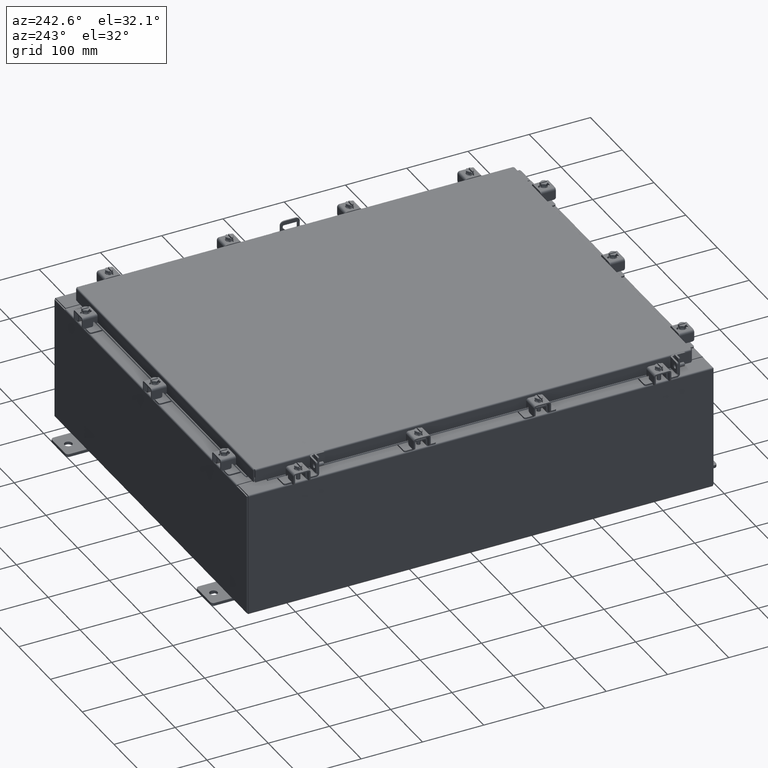
[diagram: clean part render]
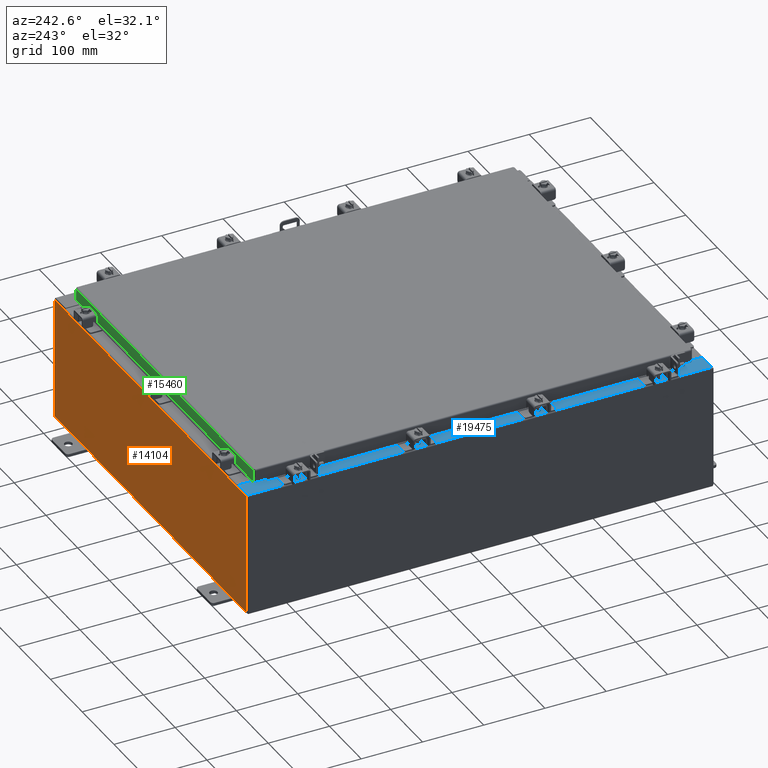
[diagram: same view with three faces highlighted in distinct colors, each labeled with its STEP entity id]
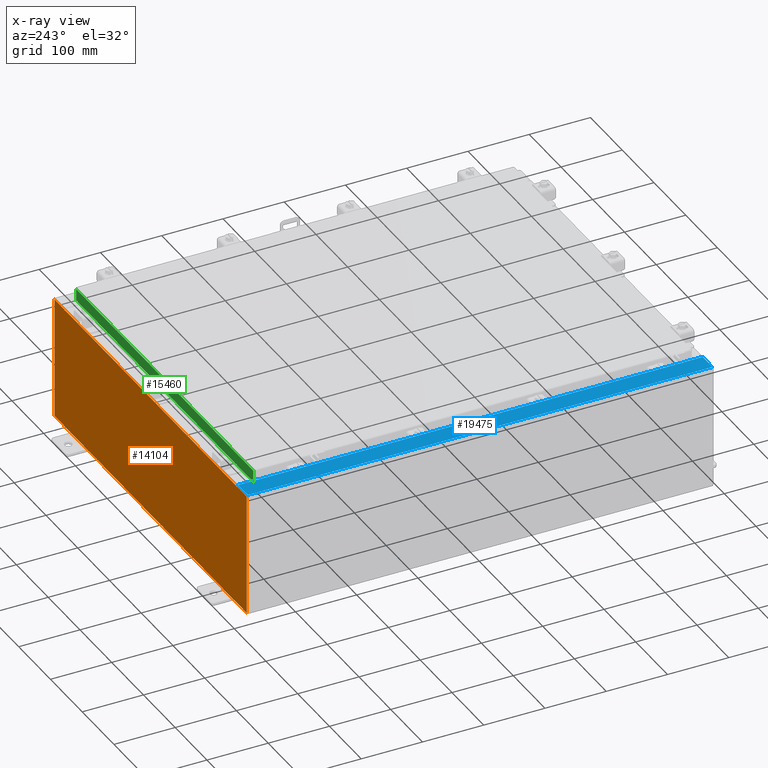
[diagram: x-ray of the same camera — body ghosted, the three highlighted faces saturated]
A machine part, auxiliary view with three faces highlighted in distinct colors.
The next image is the same camera in x-ray (body ghosted, the three faces saturated) — at least one of them is partly hidden behind the body in this view.
Their STEP definitions:

[orange] entity #14104 — the highlighted planar face has unit normal (0, -1, 0).
#158 = ORIENTED_EDGE ( 'NONE', *, *, #3708, .T. ) ;
#447 = CIRCLE ( 'NONE', #6986, 0.01867499999999949400 ) ;
#540 = VECTOR ( 'NONE', #19464, 39.37007874015748100 ) ;
#602 = CARTESIAN_POINT ( 'NONE',  ( 10.67454999999983300, -0.0000000000000000000, -4.633366117301815000E-013 ) ) ;
#752 = VECTOR ( 'NONE', #14850, 39.37007874015748100 ) ;
#1021 = LINE ( 'NONE', #602, #5194 ) ;
#1533 = LINE ( 'NONE', #5919, #5701 ) ;
#1565 = DIRECTION ( 'NONE',  ( 0.0000000000000000000, 0.0000000000000000000, -1.000000000000000000 ) ) ;
#1913 = DIRECTION ( 'NONE',  ( -0.0000000000000000000, 1.000000000000000000, -0.0000000000000000000 ) ) ;
#1983 = ORIENTED_EDGE ( 'NONE', *, *, #9355, .F. ) ;
#2015 = VERTEX_POINT ( 'NONE', #6578 ) ;
#2058 = CARTESIAN_POINT ( 'NONE',  ( 11.92530000000000000, 0.0000000000000000000, 3.925299999999999600 ) ) ;
#2156 = LINE ( 'NONE', #7537, #11028 ) ;
#2320 = ORIENTED_EDGE ( 'NONE', *, *, #19885, .F. ) ;
#2392 = CARTESIAN_POINT ( 'NONE',  ( -11.92530000000000000, 0.0000000000000000000, 3.925299999999999600 ) ) ;
#2454 = CARTESIAN_POINT ( 'NONE',  ( -11.92530000000000000, 0.0000000000000000000, -3.925299999999999600 ) ) ;
#2541 = ORIENTED_EDGE ( 'NONE', *, *, #5476, .F. ) ;
#2631 = CARTESIAN_POINT ( 'NONE',  ( 10.63720000000000400, 0.0000000000000000000, 3.874949999999999700 ) ) ;
#2865 = VECTOR ( 'NONE', #18726, 39.37007874015748100 ) ;
#3128 = CARTESIAN_POINT ( 'NONE',  ( -10.67455000000000200, 0.0000000000000000000, 3.925299999999999600 ) ) ;
#3237 = VERTEX_POINT ( 'NONE', #22089 ) ;
#3439 = ORIENTED_EDGE ( 'NONE', *, *, #21825, .F. ) ;
#3686 = EDGE_LOOP ( 'NONE', ( #15961, #1983, #3439, #158, #2320, #2541, #22035, #20472, #8961, #9691, #22755, #10307 ) ) ;
#3708 = EDGE_CURVE ( 'NONE', #21042, #3757, #21673, .T. ) ;
#3757 = VERTEX_POINT ( 'NONE', #12138 ) ;
#3929 = VERTEX_POINT ( 'NONE', #10959 ) ;
#4659 = VECTOR ( 'NONE', #8712, 39.37007874015748100 ) ;
#5194 = VECTOR ( 'NONE', #5980, 39.37007874015748100 ) ;
#5310 = DIRECTION ( 'NONE',  ( 0.0000000000000000000, -0.0000000000000000000, -1.000000000000000000 ) ) ;
#5476 = EDGE_CURVE ( 'NONE', #8221, #12244, #447, .T. ) ;
#5486 = LINE ( 'NONE', #2392, #752 ) ;
#5701 = VECTOR ( 'NONE', #20263, 39.37007874015748100 ) ;
#5723 = CARTESIAN_POINT ( 'NONE',  ( -10.65587500000000200, 0.0000000000000000000, 3.874949999999999700 ) ) ;
#5919 = CARTESIAN_POINT ( 'NONE',  ( -11.92530000000000000, 0.0000000000000000000, -3.925299999999999600 ) ) ;
#5980 = DIRECTION ( 'NONE',  ( -4.340572780400004900E-014, 0.0000000000000000000, -1.000000000000000000 ) ) ;
#6578 = CARTESIAN_POINT ( 'NONE',  ( 11.92530000000000000, 0.0000000000000000000, -3.925299999999999600 ) ) ;
#6986 = AXIS2_PLACEMENT_3D ( 'NONE', #12550, #1913, #14365 ) ;
#7530 = DIRECTION ( 'NONE',  ( 0.0000000000000000000, 0.0000000000000000000, -1.000000000000000000 ) ) ;
#7537 = CARTESIAN_POINT ( 'NONE',  ( -11.92530000000000000, 0.0000000000000000000, 3.925299999999999600 ) ) ;
#8015 = CARTESIAN_POINT ( 'NONE',  ( -10.67455000000000200, -0.0000000000000000000, 0.0000000000000000000 ) ) ;
#8221 = VERTEX_POINT ( 'NONE', #11346 ) ;
#8371 = VERTEX_POINT ( 'NONE', #3128 ) ;
#8712 = DIRECTION ( 'NONE',  ( -0.0000000000000000000, -0.0000000000000000000, 1.000000000000000000 ) ) ;
#8961 = ORIENTED_EDGE ( 'NONE', *, *, #20029, .T. ) ;
#9309 = DIRECTION ( 'NONE',  ( 1.000000000000000000, 0.0000000000000000000, 0.0000000000000000000 ) ) ;
#9355 = EDGE_CURVE ( 'NONE', #12139, #3237, #21292, .T. ) ;
#9691 = ORIENTED_EDGE ( 'NONE', *, *, #16687, .T. ) ;
#10084 = VERTEX_POINT ( 'NONE', #21834 ) ;
#10110 = DIRECTION ( 'NONE',  ( 0.0000000000000000000, 0.0000000000000000000, 1.000000000000000000 ) ) ;
#10307 = ORIENTED_EDGE ( 'NONE', *, *, #13594, .T. ) ;
#10429 = CARTESIAN_POINT ( 'NONE',  ( 11.92530000000000000, 0.0000000000000000000, 3.925299999999999600 ) ) ;
#10504 = CARTESIAN_POINT ( 'NONE',  ( -10.63720000000000400, -0.0000000000000000000, 0.0000000000000000000 ) ) ;
#10959 = CARTESIAN_POINT ( 'NONE',  ( 10.67455000000000200, 0.0000000000000000000, 3.925299999999999600 ) ) ;
#11028 = VECTOR ( 'NONE', #9309, 39.37007874015748100 ) ;
#11119 = EDGE_CURVE ( 'NONE', #15149, #10084, #19531, .T. ) ;
#11346 = CARTESIAN_POINT ( 'NONE',  ( 10.67455000000000200, 0.0000000000000000000, 3.874949999999999700 ) ) ;
#12058 = DIRECTION ( 'NONE',  ( 1.000000000000000000, 0.0000000000000000000, 0.0000000000000000000 ) ) ;
#12138 = CARTESIAN_POINT ( 'NONE',  ( 10.63720000000000400, 0.0000000000000000000, 3.912299999999999700 ) ) ;
#12139 = VERTEX_POINT ( 'NONE', #14793 ) ;
#12178 = EDGE_CURVE ( 'NONE', #3929, #8221, #1021, .T. ) ;
#12244 = VERTEX_POINT ( 'NONE', #2631 ) ;
#12550 = CARTESIAN_POINT ( 'NONE',  ( 10.65587500000000200, 0.0000000000000000000, 3.874949999999999700 ) ) ;
#12819 = EDGE_CURVE ( 'NONE', #3929, #22301, #5486, .T. ) ;
#13594 = EDGE_CURVE ( 'NONE', #10084, #8371, #2156, .T. ) ;
#14104 = ADVANCED_FACE ( 'NONE', ( #20560 ), #14201, .F. ) ;
#14201 = PLANE ( 'NONE',  #17360 ) ;
#14208 = LINE ( 'NONE', #10504, #540 ) ;
#14365 = DIRECTION ( 'NONE',  ( 0.0000000000000000000, 0.0000000000000000000, -1.000000000000000000 ) ) ;
#14793 = CARTESIAN_POINT ( 'NONE',  ( -10.63720000000000400, -0.0000000000000000000, 3.874949999999999700 ) ) ;
#14850 = DIRECTION ( 'NONE',  ( 1.000000000000000000, 0.0000000000000000000, 0.0000000000000000000 ) ) ;
#15093 = VECTOR ( 'NONE', #10110, 39.37007874015748100 ) ;
#15149 = VERTEX_POINT ( 'NONE', #2454 ) ;
#15517 = CARTESIAN_POINT ( 'NONE',  ( 10.63720000000000400, 0.0000000000000000000, 0.0000000000000000000 ) ) ;
#15961 = ORIENTED_EDGE ( 'NONE', *, *, #18083, .F. ) ;
#16033 = DIRECTION ( 'NONE',  ( 0.0000000000000000000, -1.000000000000000000, 0.0000000000000000000 ) ) ;
#16687 = EDGE_CURVE ( 'NONE', #2015, #15149, #1533, .T. ) ;
#17056 = VECTOR ( 'NONE', #1565, 39.37007874015748100 ) ;
#17100 = LINE ( 'NONE', #8015, #2865 ) ;
#17360 = AXIS2_PLACEMENT_3D ( 'NONE', #21382, #16033, #5310 ) ;
#17643 = LINE ( 'NONE', #10429, #17056 ) ;
#17995 = AXIS2_PLACEMENT_3D ( 'NONE', #5723, #18248, #7530 ) ;
#18083 = EDGE_CURVE ( 'NONE', #3237, #8371, #17100, .T. ) ;
#18248 = DIRECTION ( 'NONE',  ( -0.0000000000000000000, 1.000000000000000000, -0.0000000000000000000 ) ) ;
#18726 = DIRECTION ( 'NONE',  ( 0.0000000000000000000, 0.0000000000000000000, 1.000000000000000000 ) ) ;
#19335 = LINE ( 'NONE', #15517, #15093 ) ;
#19452 = CARTESIAN_POINT ( 'NONE',  ( -11.92530000000000000, 0.0000000000000000000, 3.925299999999999600 ) ) ;
#19464 = DIRECTION ( 'NONE',  ( 0.0000000000000000000, 0.0000000000000000000, -1.000000000000000000 ) ) ;
#19531 = LINE ( 'NONE', #19452, #4659 ) ;
#19885 = EDGE_CURVE ( 'NONE', #12244, #3757, #19335, .T. ) ;
#20029 = EDGE_CURVE ( 'NONE', #22301, #2015, #17643, .T. ) ;
#20263 = DIRECTION ( 'NONE',  ( -1.000000000000000000, -0.0000000000000000000, -0.0000000000000000000 ) ) ;
#20472 = ORIENTED_EDGE ( 'NONE', *, *, #12819, .T. ) ;
#20536 = VECTOR ( 'NONE', #12058, 39.37007874015748100 ) ;
#20560 = FACE_OUTER_BOUND ( 'NONE', #3686, .T. ) ;
#21037 = CARTESIAN_POINT ( 'NONE',  ( -10.63720000000000400, 1.024442997624098700E-016, 3.912299999999999700 ) ) ;
#21042 = VERTEX_POINT ( 'NONE', #22464 ) ;
#21292 = CIRCLE ( 'NONE', #17995, 0.01867499999999949400 ) ;
#21382 = CARTESIAN_POINT ( 'NONE',  ( 0.0000000000000000000, 0.0000000000000000000, 0.0000000000000000000 ) ) ;
#21673 = LINE ( 'NONE', #21037, #20536 ) ;
#21825 = EDGE_CURVE ( 'NONE', #21042, #12139, #14208, .T. ) ;
#21834 = CARTESIAN_POINT ( 'NONE',  ( -11.92530000000000000, 0.0000000000000000000, 3.925299999999999600 ) ) ;
#22035 = ORIENTED_EDGE ( 'NONE', *, *, #12178, .F. ) ;
#22089 = CARTESIAN_POINT ( 'NONE',  ( -10.67455000000000200, 0.0000000000000000000, 3.874949999999999700 ) ) ;
#22301 = VERTEX_POINT ( 'NONE', #2058 ) ;
#22464 = CARTESIAN_POINT ( 'NONE',  ( -10.63720000000000400, 1.024442997624098700E-016, 3.912299999999999700 ) ) ;
#22755 = ORIENTED_EDGE ( 'NONE', *, *, #11119, .T. ) ;

[blue] entity #19475 — the highlighted planar face has unit normal (0, 0, -1).
#86 = VERTEX_POINT ( 'NONE', #21416 ) ;
#179 = ORIENTED_EDGE ( 'NONE', *, *, #3672, .T. ) ;
#298 = VERTEX_POINT ( 'NONE', #11964 ) ;
#571 = LINE ( 'NONE', #1591, #19603 ) ;
#894 = VERTEX_POINT ( 'NONE', #22091 ) ;
#1342 = ORIENTED_EDGE ( 'NONE', *, *, #17827, .T. ) ;
#1591 = CARTESIAN_POINT ( 'NONE',  ( -10.69970000000003400, 0.0000000000000000000, 7.925300000000008900 ) ) ;
#1785 = CARTESIAN_POINT ( 'NONE',  ( -10.69970000000003400, 0.0000000000000000000, 7.925300000000008900 ) ) ;
#1868 = DIRECTION ( 'NONE',  ( 0.0000000000000000000, 1.000000000000000000, 0.0000000000000000000 ) ) ;
#2065 = VECTOR ( 'NONE', #10896, 39.37007874015748100 ) ;
#2133 = DIRECTION ( 'NONE',  ( -7.132762385546384700E-015, -0.0000000000000000000, 1.000000000000000000 ) ) ;
#2225 = LINE ( 'NONE', #17984, #6954 ) ;
#2807 = CARTESIAN_POINT ( 'NONE',  ( -11.91230000000003400, 14.92530000000000000, 7.925300000000000000 ) ) ;
#3067 = CARTESIAN_POINT ( 'NONE',  ( -10.75005000000003400, -13.63109999999999800, 7.925300000000010700 ) ) ;
#3193 = LINE ( 'NONE', #22739, #7391 ) ;
#3553 = CARTESIAN_POINT ( 'NONE',  ( -10.75005000000003400, -13.63109999999999800, 7.925300000000008900 ) ) ;
#3672 = EDGE_CURVE ( 'NONE', #22912, #86, #3193, .T. ) ;
#3903 = CARTESIAN_POINT ( 'NONE',  ( -10.71270000000003500, 13.59375000000000000, 7.925300000000010700 ) ) ;
#4403 = LINE ( 'NONE', #11816, #18134 ) ;
#4681 = VECTOR ( 'NONE', #5686, 39.37007874015748100 ) ;
#4979 = VERTEX_POINT ( 'NONE', #16378 ) ;
#5376 = CARTESIAN_POINT ( 'NONE',  ( -10.71270000000003500, -13.59375000000000000, 7.925300000000010700 ) ) ;
#5463 = DIRECTION ( 'NONE',  ( 1.000000000000000000, 0.0000000000000000000, 0.0000000000000000000 ) ) ;
#5686 = DIRECTION ( 'NONE',  ( -0.0000000000000000000, -1.000000000000000000, -0.0000000000000000000 ) ) ;
#6502 = AXIS2_PLACEMENT_3D ( 'NONE', #14288, #8982, #21521 ) ;
#6780 = LINE ( 'NONE', #21664, #2065 ) ;
#6954 = VECTOR ( 'NONE', #5463, 39.37007874015748100 ) ;
#7070 = CARTESIAN_POINT ( 'NONE',  ( -10.75005000000003400, -13.61242500000000000, 7.925300000000010700 ) ) ;
#7135 = PLANE ( 'NONE',  #6502 ) ;
#7187 = DIRECTION ( 'NONE',  ( -1.000000000000000000, 0.0000000000000000000, 0.0000000000000000000 ) ) ;
#7210 = EDGE_CURVE ( 'NONE', #20735, #22953, #13459, .T. ) ;
#7309 = CARTESIAN_POINT ( 'NONE',  ( -10.69970000000003400, -13.63110000000000200, 7.925300000000008900 ) ) ;
#7391 = VECTOR ( 'NONE', #10191, 39.37007874015748100 ) ;
#7716 = EDGE_CURVE ( 'NONE', #17926, #86, #14015, .T. ) ;
#7929 = CARTESIAN_POINT ( 'NONE',  ( -10.75005000000003400, 13.59374999999999800, 7.925300000000008900 ) ) ;
#7945 = ORIENTED_EDGE ( 'NONE', *, *, #22655, .F. ) ;
#8173 = ORIENTED_EDGE ( 'NONE', *, *, #8561, .F. ) ;
#8416 = LINE ( 'NONE', #5376, #17367 ) ;
#8561 = EDGE_CURVE ( 'NONE', #4979, #894, #8416, .T. ) ;
#8851 = DIRECTION ( 'NONE',  ( 1.000000000000000000, 0.0000000000000000000, 0.0000000000000000000 ) ) ;
#8982 = DIRECTION ( 'NONE',  ( 7.132762385546384700E-015, 0.0000000000000000000, -1.000000000000000000 ) ) ;
#10021 = ORIENTED_EDGE ( 'NONE', *, *, #7716, .F. ) ;
#10191 = DIRECTION ( 'NONE',  ( -1.000000000000000000, 0.0000000000000000000, -7.132762385546384700E-015 ) ) ;
#10536 = EDGE_CURVE ( 'NONE', #18730, #10713, #2225, .T. ) ;
#10635 = EDGE_CURVE ( 'NONE', #10713, #4979, #19554, .T. ) ;
#10713 = VERTEX_POINT ( 'NONE', #20175 ) ;
#10720 = CARTESIAN_POINT ( 'NONE',  ( -10.69970000000003400, 14.92530000000000000, 7.925300000000008900 ) ) ;
#10841 = VERTEX_POINT ( 'NONE', #15108 ) ;
#10896 = DIRECTION ( 'NONE',  ( 1.000000000000000000, -0.0000000000000000000, 7.132762385546384700E-015 ) ) ;
#10956 = ORIENTED_EDGE ( 'NONE', *, *, #19373, .T. ) ;
#11494 = ORIENTED_EDGE ( 'NONE', *, *, #10536, .F. ) ;
#11588 = LINE ( 'NONE', #1785, #20586 ) ;
#11661 = DIRECTION ( 'NONE',  ( -0.0000000000000000000, 1.000000000000000000, -0.0000000000000000000 ) ) ;
#11804 = ORIENTED_EDGE ( 'NONE', *, *, #10635, .F. ) ;
#11816 = CARTESIAN_POINT ( 'NONE',  ( -10.69970000000003400, 13.63109999999999600, 7.925300000000009800 ) ) ;
#11890 = AXIS2_PLACEMENT_3D ( 'NONE', #7070, #19579, #8851 ) ;
#11964 = CARTESIAN_POINT ( 'NONE',  ( -10.69970000000003400, -14.92530000000000000, 7.925300000000008900 ) ) ;
#12586 = EDGE_CURVE ( 'NONE', #10841, #22912, #11588, .T. ) ;
#12762 = CARTESIAN_POINT ( 'NONE',  ( -10.75005000000003400, 13.61242499999999600, 7.925300000000010700 ) ) ;
#13080 = CARTESIAN_POINT ( 'NONE',  ( -10.75005000000003400, 13.63109999999999600, 7.925300000000008900 ) ) ;
#13105 = FACE_OUTER_BOUND ( 'NONE', #17374, .T. ) ;
#13459 = LINE ( 'NONE', #3067, #17718 ) ;
#13599 = DIRECTION ( 'NONE',  ( -1.000000000000000000, 0.0000000000000000000, 2.170286390200049500E-014 ) ) ;
#13733 = DIRECTION ( 'NONE',  ( 1.000000000000000000, 0.0000000000000000000, -2.170286390200049500E-014 ) ) ;
#14015 = LINE ( 'NONE', #2807, #22448 ) ;
#14288 = CARTESIAN_POINT ( 'NONE',  ( -5.679009539018295300E-014, 0.0000000000000000000, 7.925300000000085300 ) ) ;
#14485 = CIRCLE ( 'NONE', #19041, 0.01867499999999949400 ) ;
#14581 = DIRECTION ( 'NONE',  ( 1.000000000000000000, 0.0000000000000000000, 0.0000000000000000000 ) ) ;
#15108 = CARTESIAN_POINT ( 'NONE',  ( -10.69970000000003400, 13.63109999999999600, 7.925300000000008900 ) ) ;
#15373 = CIRCLE ( 'NONE', #11890, 0.01867499999999949400 ) ;
#15855 = VERTEX_POINT ( 'NONE', #13080 ) ;
#15857 = DIRECTION ( 'NONE',  ( 0.0000000000000000000, 1.000000000000000000, 0.0000000000000000000 ) ) ;
#16238 = ORIENTED_EDGE ( 'NONE', *, *, #12586, .T. ) ;
#16378 = CARTESIAN_POINT ( 'NONE',  ( -10.71270000000003500, -13.59375000000000000, 7.925300000000010700 ) ) ;
#17367 = VECTOR ( 'NONE', #7187, 39.37007874015748100 ) ;
#17374 = EDGE_LOOP ( 'NONE', ( #7945, #16238, #179, #10021, #1342, #10956, #17843, #18936, #8173, #11804, #11494, #19079 ) ) ;
#17718 = VECTOR ( 'NONE', #13733, 39.37007874015748100 ) ;
#17827 = EDGE_CURVE ( 'NONE', #17926, #298, #6780, .T. ) ;
#17843 = ORIENTED_EDGE ( 'NONE', *, *, #7210, .F. ) ;
#17926 = VERTEX_POINT ( 'NONE', #20097 ) ;
#17984 = CARTESIAN_POINT ( 'NONE',  ( -10.75005000000003400, 13.59374999999999800, 7.925300000000010700 ) ) ;
#18134 = VECTOR ( 'NONE', #13599, 39.37007874015748100 ) ;
#18730 = VERTEX_POINT ( 'NONE', #7929 ) ;
#18936 = ORIENTED_EDGE ( 'NONE', *, *, #20703, .F. ) ;
#19041 = AXIS2_PLACEMENT_3D ( 'NONE', #12762, #2133, #14581 ) ;
#19079 = ORIENTED_EDGE ( 'NONE', *, *, #22043, .F. ) ;
#19373 = EDGE_CURVE ( 'NONE', #298, #22953, #571, .T. ) ;
#19475 = ADVANCED_FACE ( 'NONE', ( #13105 ), #7135, .F. ) ;
#19554 = LINE ( 'NONE', #3903, #4681 ) ;
#19579 = DIRECTION ( 'NONE',  ( -7.132762385546384700E-015, -0.0000000000000000000, 1.000000000000000000 ) ) ;
#19603 = VECTOR ( 'NONE', #15857, 39.37007874015748100 ) ;
#20097 = CARTESIAN_POINT ( 'NONE',  ( -11.91230000000003400, -14.92530000000000000, 7.925300000000000000 ) ) ;
#20175 = CARTESIAN_POINT ( 'NONE',  ( -10.71270000000003500, 13.59374999999999800, 7.925300000000010700 ) ) ;
#20586 = VECTOR ( 'NONE', #1868, 39.37007874015748100 ) ;
#20703 = EDGE_CURVE ( 'NONE', #894, #20735, #15373, .T. ) ;
#20735 = VERTEX_POINT ( 'NONE', #3553 ) ;
#21416 = CARTESIAN_POINT ( 'NONE',  ( -11.91230000000003400, 14.92530000000000000, 7.925300000000000000 ) ) ;
#21521 = DIRECTION ( 'NONE',  ( -1.000000000000000000, 0.0000000000000000000, -7.132762385546384700E-015 ) ) ;
#21664 = CARTESIAN_POINT ( 'NONE',  ( -5.679009539018295300E-014, -14.92530000000000000, 7.925300000000085300 ) ) ;
#22043 = EDGE_CURVE ( 'NONE', #15855, #18730, #14485, .T. ) ;
#22091 = CARTESIAN_POINT ( 'NONE',  ( -10.75005000000003400, -13.59375000000000000, 7.925300000000008900 ) ) ;
#22448 = VECTOR ( 'NONE', #11661, 39.37007874015748100 ) ;
#22655 = EDGE_CURVE ( 'NONE', #10841, #15855, #4403, .T. ) ;
#22739 = CARTESIAN_POINT ( 'NONE',  ( -5.679009539018295300E-014, 14.92530000000000000, 7.925300000000085300 ) ) ;
#22912 = VERTEX_POINT ( 'NONE', #10720 ) ;
#22953 = VERTEX_POINT ( 'NONE', #7309 ) ;

[green] entity #15460 — the highlighted planar face has unit normal (0, -1, -0).
#98 = VECTOR ( 'NONE', #3360, 39.37007874015748100 ) ;
#468 = EDGE_CURVE ( 'NONE', #16965, #18408, #5592, .T. ) ;
#584 = ORIENTED_EDGE ( 'NONE', *, *, #17688, .F. ) ;
#1317 = CARTESIAN_POINT ( 'NONE',  ( 10.23915786437626700, 14.09399999999999900, -0.8500000000000033100 ) ) ;
#1512 = CARTESIAN_POINT ( 'NONE',  ( -4.898647335700341400E-030, 14.09399999999999900, 3.999012166344507700E-014 ) ) ;
#2870 = EDGE_CURVE ( 'NONE', #13373, #7201, #17187, .T. ) ;
#3294 = DIRECTION ( 'NONE',  ( 0.0000000000000000000, 2.818880942772350300E-015, -1.000000000000000000 ) ) ;
#3360 = DIRECTION ( 'NONE',  ( 1.000000000000000000, -0.0000000000000000000, -0.0000000000000000000 ) ) ;
#3864 = CARTESIAN_POINT ( 'NONE',  ( 10.98915786437626700, 14.09399999999999900, -0.08770000000000007000 ) ) ;
#4122 = ORIENTED_EDGE ( 'NONE', *, *, #13832, .F. ) ;
#4490 = VECTOR ( 'NONE', #15604, 39.37007874015748100 ) ;
#4791 = CARTESIAN_POINT ( 'NONE',  ( -10.98915786437626700, 14.09399999999999900, -0.08770000000000007000 ) ) ;
#5592 = LINE ( 'NONE', #10641, #9762 ) ;
#5876 = CARTESIAN_POINT ( 'NONE',  ( -11.07799999999999900, 14.09399999999999900, -0.08770000000000007000 ) ) ;
#6408 = ORIENTED_EDGE ( 'NONE', *, *, #16277, .T. ) ;
#6851 = DIRECTION ( 'NONE',  ( 1.000000000000000000, -4.379057701015054300E-047, 1.233005954894504400E-016 ) ) ;
#7085 = CARTESIAN_POINT ( 'NONE',  ( 10.98915786437626700, 14.09400000000000100, -0.8499999999999996400 ) ) ;
#7149 = VECTOR ( 'NONE', #6851, 39.37007874015748100 ) ;
#7201 = VERTEX_POINT ( 'NONE', #10142 ) ;
#7472 = ORIENTED_EDGE ( 'NONE', *, *, #468, .F. ) ;
#8557 = CARTESIAN_POINT ( 'NONE',  ( -11.07799999999999900, 14.09400000000000100, -0.8500000000000024200 ) ) ;
#8589 = PLANE ( 'NONE',  #15557 ) ;
#9242 = LINE ( 'NONE', #19225, #4490 ) ;
#9326 = VERTEX_POINT ( 'NONE', #3864 ) ;
#9551 = FACE_OUTER_BOUND ( 'NONE', #10485, .T. ) ;
#9762 = VECTOR ( 'NONE', #19591, 39.37007874015748100 ) ;
#9893 = LINE ( 'NONE', #5876, #19463 ) ;
#10142 = CARTESIAN_POINT ( 'NONE',  ( -10.23915786437626700, 14.09399999999999900, -0.8500000000000033100 ) ) ;
#10485 = EDGE_LOOP ( 'NONE', ( #19820, #6408, #7472, #584, #21848, #4122 ) ) ;
#10641 = CARTESIAN_POINT ( 'NONE',  ( -11.07799999999999900, 14.09400000000000100, -0.8500000000000024200 ) ) ;
#11306 = LINE ( 'NONE', #18781, #20312 ) ;
#13373 = VERTEX_POINT ( 'NONE', #19511 ) ;
#13654 = EDGE_CURVE ( 'NONE', #9326, #22692, #9893, .T. ) ;
#13832 = EDGE_CURVE ( 'NONE', #22692, #13373, #11306, .T. ) ;
#13953 = DIRECTION ( 'NONE',  ( 3.475696988576941300E-031, -1.000000000000000000, -2.818880942772350300E-015 ) ) ;
#15460 = ADVANCED_FACE ( 'NONE', ( #9551 ), #8589, .F. ) ;
#15557 = AXIS2_PLACEMENT_3D ( 'NONE', #1512, #13953, #3294 ) ;
#15604 = DIRECTION ( 'NONE',  ( 0.0000000000000000000, 2.818880942772350300E-015, -1.000000000000000000 ) ) ;
#15843 = CARTESIAN_POINT ( 'NONE',  ( -10.23915786437626700, 14.09399999999999900, -0.8500000000000033100 ) ) ;
#16277 = EDGE_CURVE ( 'NONE', #9326, #18408, #9242, .T. ) ;
#16595 = DIRECTION ( 'NONE',  ( -1.000000000000000000, -3.475696988576942200E-031, -9.473942235605600700E-046 ) ) ;
#16965 = VERTEX_POINT ( 'NONE', #1317 ) ;
#17187 = LINE ( 'NONE', #8557, #7149 ) ;
#17688 = EDGE_CURVE ( 'NONE', #7201, #16965, #19089, .T. ) ;
#18408 = VERTEX_POINT ( 'NONE', #7085 ) ;
#18781 = CARTESIAN_POINT ( 'NONE',  ( -10.98915786437626900, 14.09399999999999900, -0.07469999999999978000 ) ) ;
#19089 = LINE ( 'NONE', #15843, #98 ) ;
#19225 = CARTESIAN_POINT ( 'NONE',  ( 10.98915786437626900, 14.09399999999999900, 3.999012166344507700E-014 ) ) ;
#19463 = VECTOR ( 'NONE', #16595, 39.37007874015748100 ) ;
#19511 = CARTESIAN_POINT ( 'NONE',  ( -10.98915786437626900, 14.09400000000000100, -0.8500000000000024200 ) ) ;
#19591 = DIRECTION ( 'NONE',  ( 1.000000000000000000, -4.379057701015054300E-047, 1.233005954894504400E-016 ) ) ;
#19820 = ORIENTED_EDGE ( 'NONE', *, *, #13654, .F. ) ;
#20312 = VECTOR ( 'NONE', #20590, 39.37007874015748100 ) ;
#20590 = DIRECTION ( 'NONE',  ( -0.0000000000000000000, 2.818880942772350300E-015, -1.000000000000000000 ) ) ;
#21848 = ORIENTED_EDGE ( 'NONE', *, *, #2870, .F. ) ;
#22692 = VERTEX_POINT ( 'NONE', #4791 ) ;